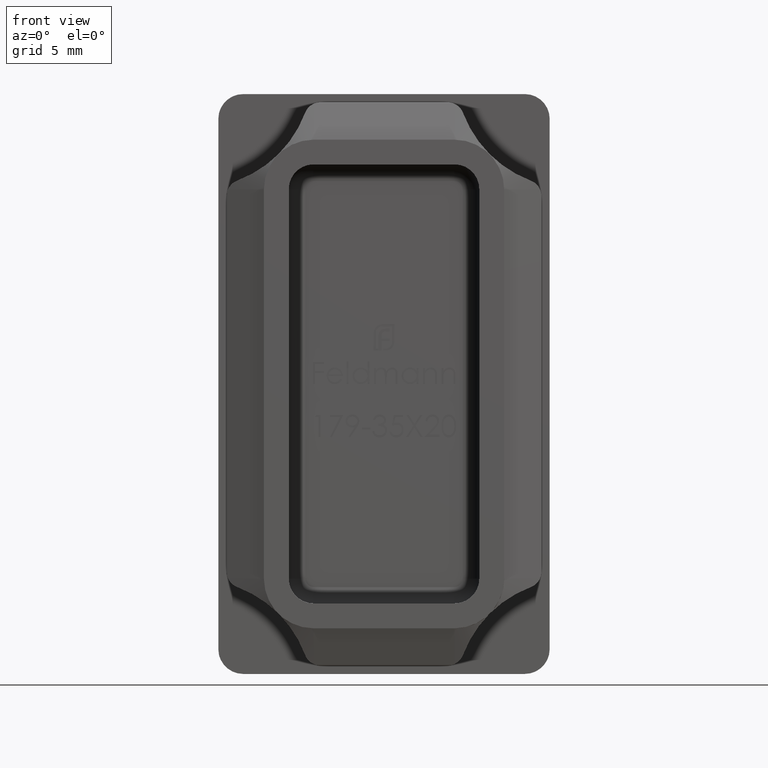
[diagram: clean part render]
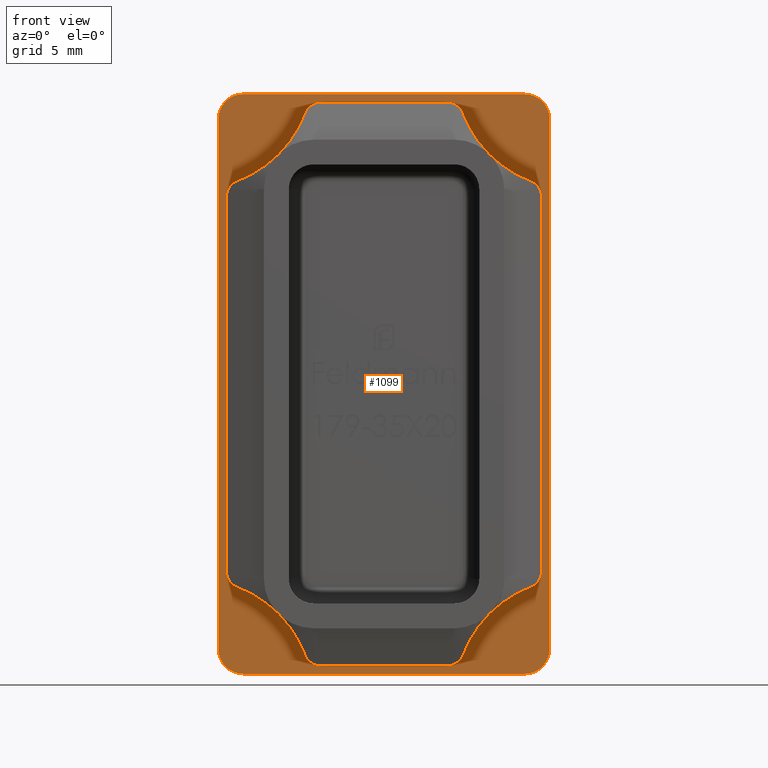
[diagram: same view with one face highlighted and labeled with its STEP entity id]
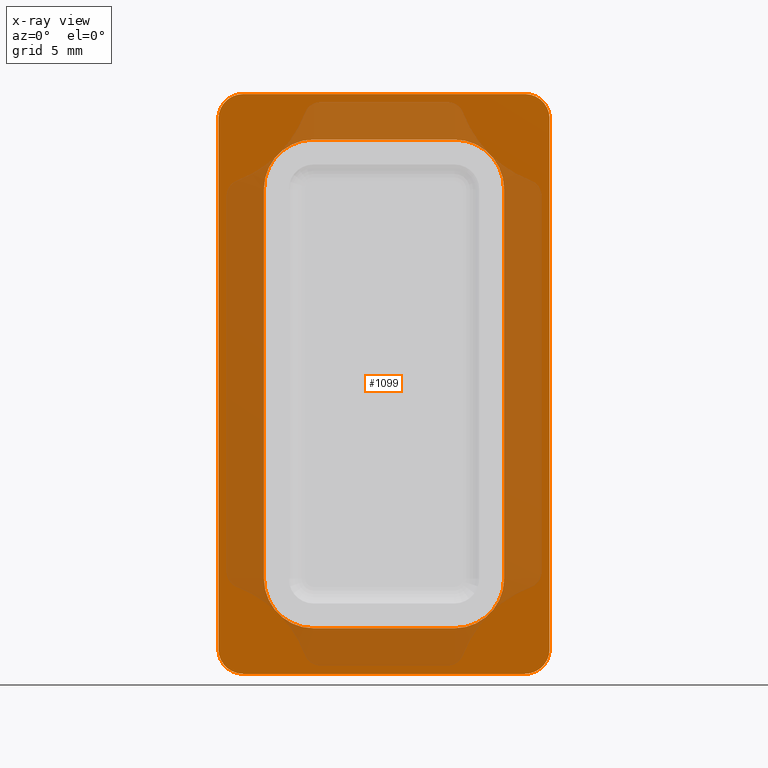
[diagram: x-ray of the same camera — body ghosted, the highlighted face saturated]
A machine part, front view. The second image highlights one B-rep face of the part: STEP entity #1099.
The next image is the same camera in x-ray: the body ghosted, the highlighted face saturated — about 58% of this face is hidden behind the body in this view.
In plain terms, the highlighted planar face has unit normal (0, 1, 0).
Its self-contained STEP definition (entity closure, byte-faithful):
#86 = DIRECTION ( 'NONE',  ( -1.000000000000000000, -0.000000000000000000, -0.000000000000000000 ) ) ;
#228 = AXIS2_PLACEMENT_3D ( 'NONE', #14030, #11122, #4774 ) ;
#777 = CIRCLE ( 'NONE', #12869, 1.500000000000001332 ) ;
#842 = CARTESIAN_POINT ( 'NONE',  ( 10.00000000000000178, 0.000000000000000000, 16.00000000000000000 ) ) ;
#953 = CARTESIAN_POINT ( 'NONE',  ( 4.249999999999997335, 0.000000000000000000, 11.75000000000000178 ) ) ;
#1042 = FACE_BOUND ( 'NONE', #9675, .T. ) ;
#1099 = ADVANCED_FACE ( 'NONE', ( #1042, #17675 ), #15567, .F. ) ;
#1245 = CARTESIAN_POINT ( 'NONE',  ( 7.249999999999997335, 0.000000000000000000, 11.75000000000000355 ) ) ;
#1317 = EDGE_LOOP ( 'NONE', ( #9370, #19680, #17733, #13995, #15620, #2759, #10663, #9430 ) ) ;
#1555 = AXIS2_PLACEMENT_3D ( 'NONE', #5124, #15769, #3446 ) ;
#1611 = VERTEX_POINT ( 'NONE', #13054 ) ;
#1702 = CARTESIAN_POINT ( 'NONE',  ( 4.250000000000004441, 0.000000000000000000, -14.75000000000000000 ) ) ;
#1912 = VERTEX_POINT ( 'NONE', #842 ) ;
#2370 = CARTESIAN_POINT ( 'NONE',  ( 8.500000000000000000, 0.000000000000000000, -17.50000000000000000 ) ) ;
#2736 = VERTEX_POINT ( 'NONE', #16640 ) ;
#2756 = VECTOR ( 'NONE', #10453, 1000.000000000000000 ) ;
#2759 = ORIENTED_EDGE ( 'NONE', *, *, #2791, .T. ) ;
#2791 = EDGE_CURVE ( 'NONE', #16638, #1611, #777, .T. ) ;
#2852 = ORIENTED_EDGE ( 'NONE', *, *, #5049, .F. ) ;
#2962 = VERTEX_POINT ( 'NONE', #8377 ) ;
#2967 = EDGE_CURVE ( 'NONE', #1912, #2962, #17411, .T. ) ;
#3211 = VECTOR ( 'NONE', #4106, 1000.000000000000000 ) ;
#3392 = DIRECTION ( 'NONE',  ( 0.000000000000000000, 1.000000000000000000, 0.000000000000000000 ) ) ;
#3446 = DIRECTION ( 'NONE',  ( 0.000000000000000000, 0.000000000000000000, 1.000000000000000000 ) ) ;
#3592 = VERTEX_POINT ( 'NONE', #2370 ) ;
#3761 = CARTESIAN_POINT ( 'NONE',  ( -8.499999999999998224, 0.000000000000000000, 17.50000000000000000 ) ) ;
#3810 = ORIENTED_EDGE ( 'NONE', *, *, #9465, .F. ) ;
#3935 = VERTEX_POINT ( 'NONE', #5822 ) ;
#4038 = CARTESIAN_POINT ( 'NONE',  ( -9.999999999999998224, 0.000000000000000000, 17.50000000000000000 ) ) ;
#4106 = DIRECTION ( 'NONE',  ( 1.000000000000000000, 0.000000000000000000, 0.000000000000000000 ) ) ;
#4163 = EDGE_CURVE ( 'NONE', #1912, #16086, #10250, .T. ) ;
#4243 = DIRECTION ( 'NONE',  ( 1.000000000000000000, 0.000000000000000000, 0.000000000000000000 ) ) ;
#4372 = DIRECTION ( 'NONE',  ( 9.912705577010325549E-17, 0.000000000000000000, 1.000000000000000000 ) ) ;
#4440 = VECTOR ( 'NONE', #11825, 1000.000000000000000 ) ;
#4774 = DIRECTION ( 'NONE',  ( 0.000000000000000000, 0.000000000000000000, 1.000000000000000000 ) ) ;
#5049 = EDGE_CURVE ( 'NONE', #12097, #9047, #17299, .T. ) ;
#5124 = CARTESIAN_POINT ( 'NONE',  ( -8.500000000000001776, 0.000000000000000000, -16.00000000000000000 ) ) ;
#5585 = DIRECTION ( 'NONE',  ( -2.952720810173288126E-16, -0.000000000000000000, 1.000000000000000000 ) ) ;
#5764 = DIRECTION ( 'NONE',  ( 0.000000000000000000, -1.000000000000000000, 0.000000000000000000 ) ) ;
#5812 = CARTESIAN_POINT ( 'NONE',  ( -7.250000000000002665, 0.000000000000000000, 11.74999999999999822 ) ) ;
#5815 = CARTESIAN_POINT ( 'NONE',  ( -4.249999999999995559, -0.000000000000000000, -14.75000000000000000 ) ) ;
#5822 = CARTESIAN_POINT ( 'NONE',  ( -4.250000000000002665, 0.000000000000000000, 14.75000000000000178 ) ) ;
#5876 = ORIENTED_EDGE ( 'NONE', *, *, #19055, .F. ) ;
#5904 = DIRECTION ( 'NONE',  ( 0.000000000000000000, 0.000000000000000000, 1.000000000000000000 ) ) ;
#6037 = LINE ( 'NONE', #12696, #9603 ) ;
#6045 = CARTESIAN_POINT ( 'NONE',  ( -10.00000000000000178, 0.000000000000000000, -16.00000000000000000 ) ) ;
#6297 = EDGE_CURVE ( 'NONE', #9588, #3935, #17259, .T. ) ;
#6673 = EDGE_CURVE ( 'NONE', #13301, #2736, #18685, .T. ) ;
#7065 = CARTESIAN_POINT ( 'NONE',  ( -7.250000000000002665, 0.000000000000000000, 11.74999999999999822 ) ) ;
#7380 = EDGE_CURVE ( 'NONE', #16638, #16086, #15364, .T. ) ;
#7420 = DIRECTION ( 'NONE',  ( 0.000000000000000000, -1.000000000000000000, 0.000000000000000000 ) ) ;
#7564 = AXIS2_PLACEMENT_3D ( 'NONE', #7886, #10987, #15545 ) ;
#7714 = CARTESIAN_POINT ( 'NONE',  ( -8.499999999999998224, 0.000000000000000000, 16.00000000000000000 ) ) ;
#7722 = CARTESIAN_POINT ( 'NONE',  ( -10.00000000000000178, 0.000000000000000000, -17.50000000000000000 ) ) ;
#7840 = CARTESIAN_POINT ( 'NONE',  ( 9.999999999999998224, 0.000000000000000000, -17.50000000000000000 ) ) ;
#7886 = CARTESIAN_POINT ( 'NONE',  ( 8.500000000000001776, 0.000000000000000000, 16.00000000000000000 ) ) ;
#8090 = AXIS2_PLACEMENT_3D ( 'NONE', #10130, #10066, #9989 ) ;
#8220 = LINE ( 'NONE', #5815, #12025 ) ;
#8345 = LINE ( 'NONE', #19737, #18994 ) ;
#8377 = CARTESIAN_POINT ( 'NONE',  ( 9.999999999999998224, 0.000000000000000000, -16.00000000000000000 ) ) ;
#8441 = CARTESIAN_POINT ( 'NONE',  ( 8.500000000000003553, 0.000000000000000000, 17.50000000000000000 ) ) ;
#8582 = DIRECTION ( 'NONE',  ( 0.000000000000000000, 0.000000000000000000, 1.000000000000000000 ) ) ;
#8768 = AXIS2_PLACEMENT_3D ( 'NONE', #953, #5764, #8582 ) ;
#9047 = VERTEX_POINT ( 'NONE', #14269 ) ;
#9164 = CIRCLE ( 'NONE', #1555, 1.499999999999999556 ) ;
#9334 = CARTESIAN_POINT ( 'NONE',  ( 4.249999999999997335, 0.000000000000000000, 14.75000000000000355 ) ) ;
#9370 = ORIENTED_EDGE ( 'NONE', *, *, #13979, .F. ) ;
#9419 = CARTESIAN_POINT ( 'NONE',  ( 0.000000000000000000, 0.000000000000000000, 0.000000000000000000 ) ) ;
#9430 = ORIENTED_EDGE ( 'NONE', *, *, #14549, .T. ) ;
#9465 = EDGE_CURVE ( 'NONE', #16142, #12097, #8220, .T. ) ;
#9588 = VERTEX_POINT ( 'NONE', #9334 ) ;
#9603 = VECTOR ( 'NONE', #5585, 1000.000000000000000 ) ;
#9675 = EDGE_LOOP ( 'NONE', ( #19436, #5876, #15889, #2852, #3810, #17857, #16193, #12409 ) ) ;
#9847 = CIRCLE ( 'NONE', #18998, 3.000000000000000888 ) ;
#9989 = DIRECTION ( 'NONE',  ( 0.000000000000000000, 0.000000000000000000, 1.000000000000000000 ) ) ;
#10066 = DIRECTION ( 'NONE',  ( 0.000000000000000000, -1.000000000000000000, 0.000000000000000000 ) ) ;
#10130 = CARTESIAN_POINT ( 'NONE',  ( -4.249999999999995559, -0.000000000000000000, -11.75000000000000000 ) ) ;
#10250 = CIRCLE ( 'NONE', #7564, 1.500000000000001332 ) ;
#10453 = DIRECTION ( 'NONE',  ( 2.952720810173288619E-16, -0.000000000000000000, -1.000000000000000000 ) ) ;
#10663 = ORIENTED_EDGE ( 'NONE', *, *, #19487, .F. ) ;
#10940 = DIRECTION ( 'NONE',  ( 0.000000000000000000, -0.000000000000000000, 1.000000000000000000 ) ) ;
#10987 = DIRECTION ( 'NONE',  ( -0.000000000000000000, -1.000000000000000000, -0.000000000000000000 ) ) ;
#11091 = EDGE_CURVE ( 'NONE', #3592, #2962, #11250, .T. ) ;
#11122 = DIRECTION ( 'NONE',  ( -0.000000000000000000, -1.000000000000000000, -0.000000000000000000 ) ) ;
#11250 = CIRCLE ( 'NONE', #228, 1.499999999999999556 ) ;
#11436 = CIRCLE ( 'NONE', #8768, 3.000000000000000888 ) ;
#11825 = DIRECTION ( 'NONE',  ( -1.000000000000000000, -0.000000000000000000, -2.040851148208008245E-16 ) ) ;
#11878 = DIRECTION ( 'NONE',  ( 0.000000000000000000, 0.000000000000000000, -1.000000000000000000 ) ) ;
#12025 = VECTOR ( 'NONE', #4243, 1000.000000000000000 ) ;
#12097 = VERTEX_POINT ( 'NONE', #1702 ) ;
#12228 = VERTEX_POINT ( 'NONE', #15923 ) ;
#12409 = ORIENTED_EDGE ( 'NONE', *, *, #14154, .F. ) ;
#12696 = CARTESIAN_POINT ( 'NONE',  ( 7.249999999999997335, 0.000000000000000000, 11.75000000000000355 ) ) ;
#12869 = AXIS2_PLACEMENT_3D ( 'NONE', #7714, #18312, #5904 ) ;
#13054 = CARTESIAN_POINT ( 'NONE',  ( -9.999999999999998224, 0.000000000000000000, 16.00000000000000000 ) ) ;
#13301 = VERTEX_POINT ( 'NONE', #7065 ) ;
#13405 = CARTESIAN_POINT ( 'NONE',  ( -4.250000000000002665, 0.000000000000000000, 11.75000000000000000 ) ) ;
#13769 = LINE ( 'NONE', #7722, #17785 ) ;
#13979 = EDGE_CURVE ( 'NONE', #3592, #12228, #13769, .T. ) ;
#13995 = ORIENTED_EDGE ( 'NONE', *, *, #4163, .T. ) ;
#14030 = CARTESIAN_POINT ( 'NONE',  ( 8.500000000000000000, 0.000000000000000000, -16.00000000000000000 ) ) ;
#14154 = EDGE_CURVE ( 'NONE', #3935, #13301, #9847, .T. ) ;
#14236 = DIRECTION ( 'NONE',  ( -9.912705577010325549E-17, -0.000000000000000000, -1.000000000000000000 ) ) ;
#14269 = CARTESIAN_POINT ( 'NONE',  ( 7.250000000000004441, 0.000000000000000000, -11.75000000000000000 ) ) ;
#14549 = EDGE_CURVE ( 'NONE', #15884, #12228, #9164, .T. ) ;
#14793 = DIRECTION ( 'NONE',  ( 0.000000000000000000, -1.000000000000000000, 0.000000000000000000 ) ) ;
#14841 = CARTESIAN_POINT ( 'NONE',  ( -4.249999999999995559, 0.000000000000000000, -14.75000000000000000 ) ) ;
#14895 = EDGE_CURVE ( 'NONE', #9047, #19622, #6037, .T. ) ;
#15134 = EDGE_CURVE ( 'NONE', #2736, #16142, #18837, .T. ) ;
#15364 = LINE ( 'NONE', #4038, #3211 ) ;
#15545 = DIRECTION ( 'NONE',  ( -3.469446951953611033E-15, 0.000000000000000000, 1.000000000000000000 ) ) ;
#15567 = PLANE ( 'NONE',  #19084 ) ;
#15620 = ORIENTED_EDGE ( 'NONE', *, *, #7380, .F. ) ;
#15769 = DIRECTION ( 'NONE',  ( -0.000000000000000000, -1.000000000000000000, -0.000000000000000000 ) ) ;
#15884 = VERTEX_POINT ( 'NONE', #6045 ) ;
#15889 = ORIENTED_EDGE ( 'NONE', *, *, #14895, .F. ) ;
#15923 = CARTESIAN_POINT ( 'NONE',  ( -8.500000000000001776, 0.000000000000000000, -17.50000000000000000 ) ) ;
#16086 = VERTEX_POINT ( 'NONE', #8441 ) ;
#16142 = VERTEX_POINT ( 'NONE', #14841 ) ;
#16193 = ORIENTED_EDGE ( 'NONE', *, *, #6673, .F. ) ;
#16216 = AXIS2_PLACEMENT_3D ( 'NONE', #19414, #7420, #11878 ) ;
#16444 = DIRECTION ( 'NONE',  ( 0.000000000000000000, 0.000000000000000000, 1.000000000000000000 ) ) ;
#16638 = VERTEX_POINT ( 'NONE', #3761 ) ;
#16640 = CARTESIAN_POINT ( 'NONE',  ( -7.249999999999996447, 0.000000000000000000, -11.75000000000000355 ) ) ;
#17259 = LINE ( 'NONE', #19627, #4440 ) ;
#17299 = CIRCLE ( 'NONE', #16216, 2.999999999999999112 ) ;
#17411 = LINE ( 'NONE', #7840, #18865 ) ;
#17675 = FACE_OUTER_BOUND ( 'NONE', #1317, .T. ) ;
#17733 = ORIENTED_EDGE ( 'NONE', *, *, #2967, .F. ) ;
#17785 = VECTOR ( 'NONE', #86, 1000.000000000000000 ) ;
#17857 = ORIENTED_EDGE ( 'NONE', *, *, #15134, .F. ) ;
#18312 = DIRECTION ( 'NONE',  ( -0.000000000000000000, -1.000000000000000000, -0.000000000000000000 ) ) ;
#18685 = LINE ( 'NONE', #5812, #2756 ) ;
#18837 = CIRCLE ( 'NONE', #8090, 2.999999999999999112 ) ;
#18865 = VECTOR ( 'NONE', #14236, 1000.000000000000000 ) ;
#18994 = VECTOR ( 'NONE', #4372, 1000.000000000000000 ) ;
#18998 = AXIS2_PLACEMENT_3D ( 'NONE', #13405, #14793, #16444 ) ;
#19055 = EDGE_CURVE ( 'NONE', #19622, #9588, #11436, .T. ) ;
#19084 = AXIS2_PLACEMENT_3D ( 'NONE', #9419, #3392, #10940 ) ;
#19414 = CARTESIAN_POINT ( 'NONE',  ( 4.250000000000004441, 0.000000000000000000, -11.75000000000000178 ) ) ;
#19436 = ORIENTED_EDGE ( 'NONE', *, *, #6297, .F. ) ;
#19487 = EDGE_CURVE ( 'NONE', #15884, #1611, #8345, .T. ) ;
#19622 = VERTEX_POINT ( 'NONE', #1245 ) ;
#19627 = CARTESIAN_POINT ( 'NONE',  ( -4.250000000000002665, 0.000000000000000000, 14.75000000000000178 ) ) ;
#19680 = ORIENTED_EDGE ( 'NONE', *, *, #11091, .T. ) ;
#19737 = CARTESIAN_POINT ( 'NONE',  ( -10.00000000000000178, 0.000000000000000000, -17.50000000000000000 ) ) ;